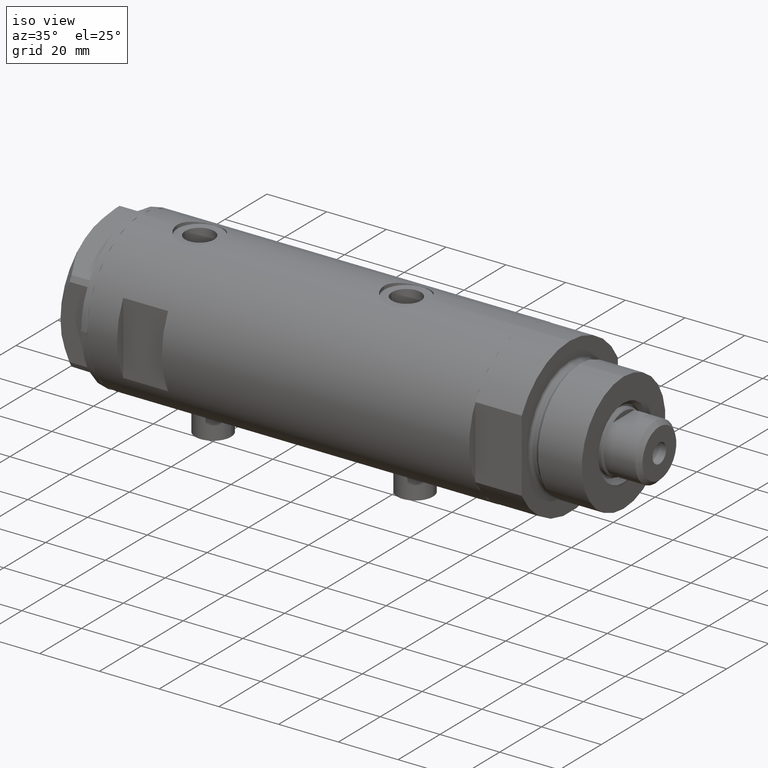
[diagram: clean part render]
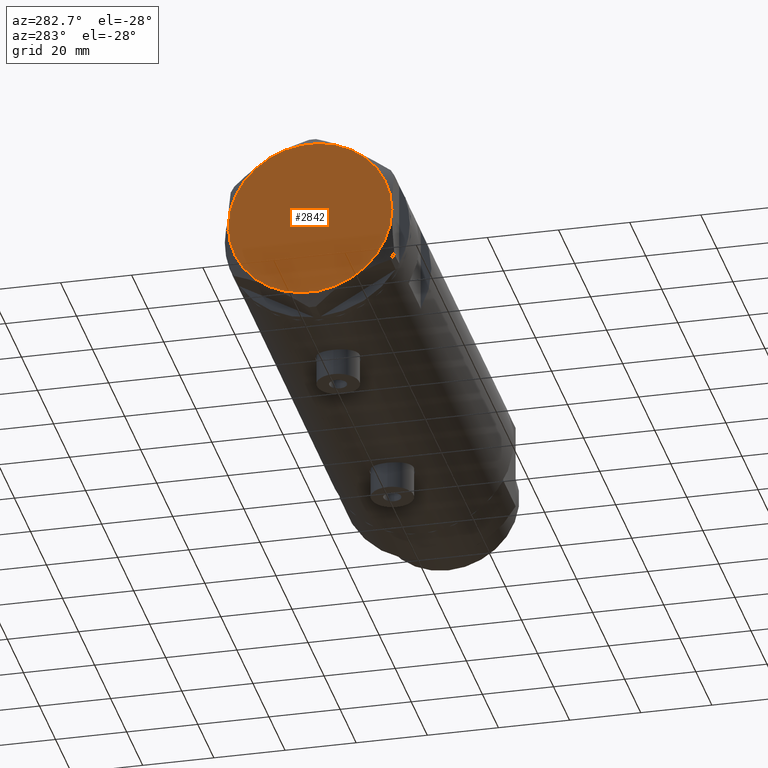
[diagram: tour spotlight — one face highlighted and labeled with its STEP entity id]
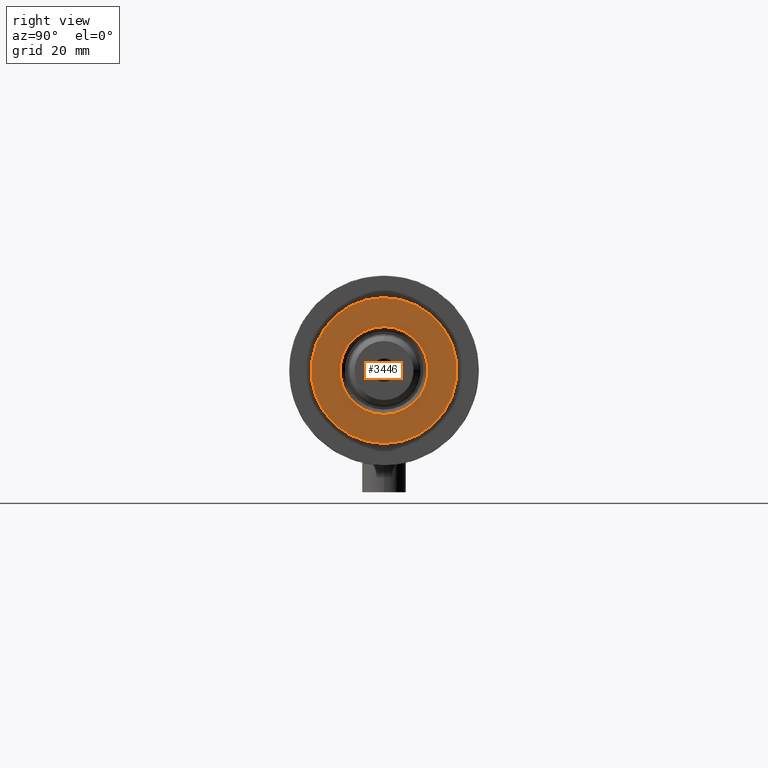
[diagram: tour spotlight — one face highlighted and labeled with its STEP entity id]
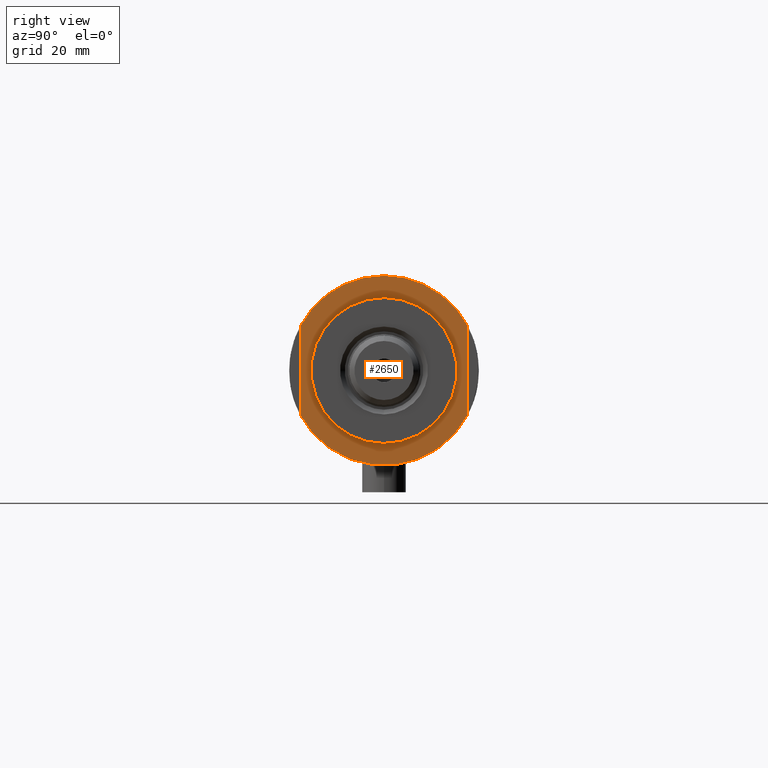
[diagram: tour spotlight — one face highlighted and labeled with its STEP entity id]
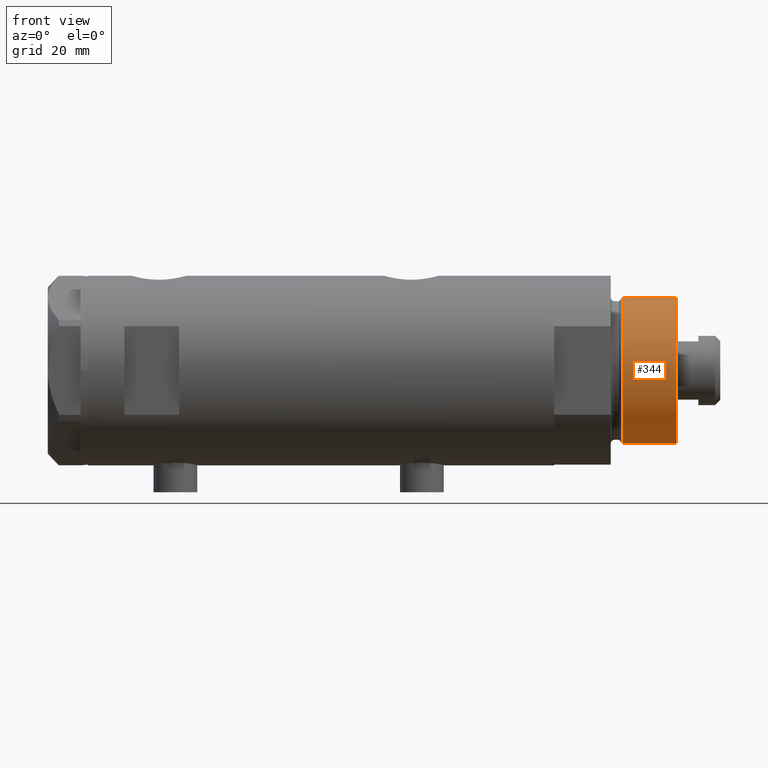
[diagram: tour spotlight — one face highlighted and labeled with its STEP entity id]
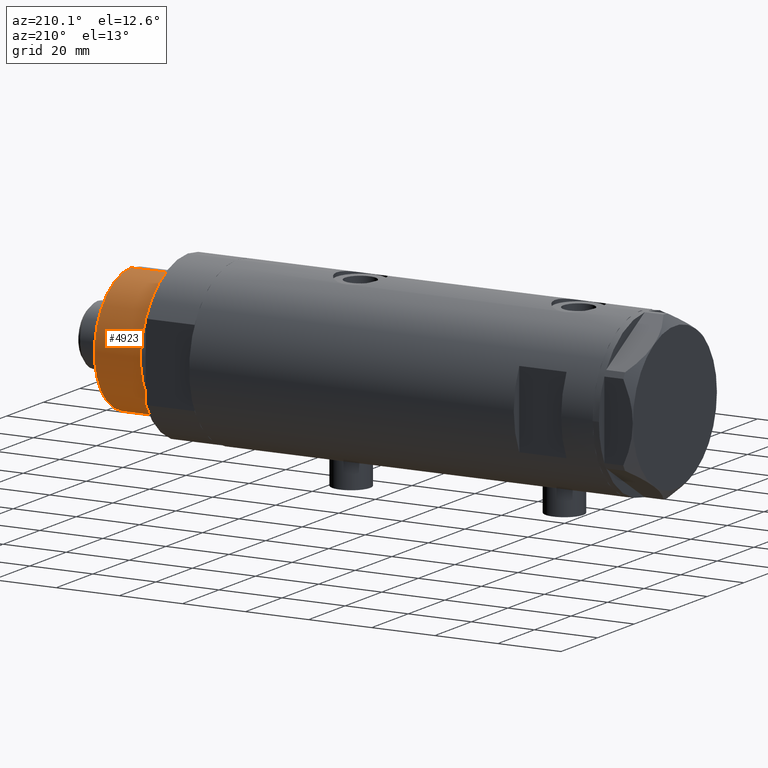
[diagram: tour spotlight — one face highlighted and labeled with its STEP entity id]
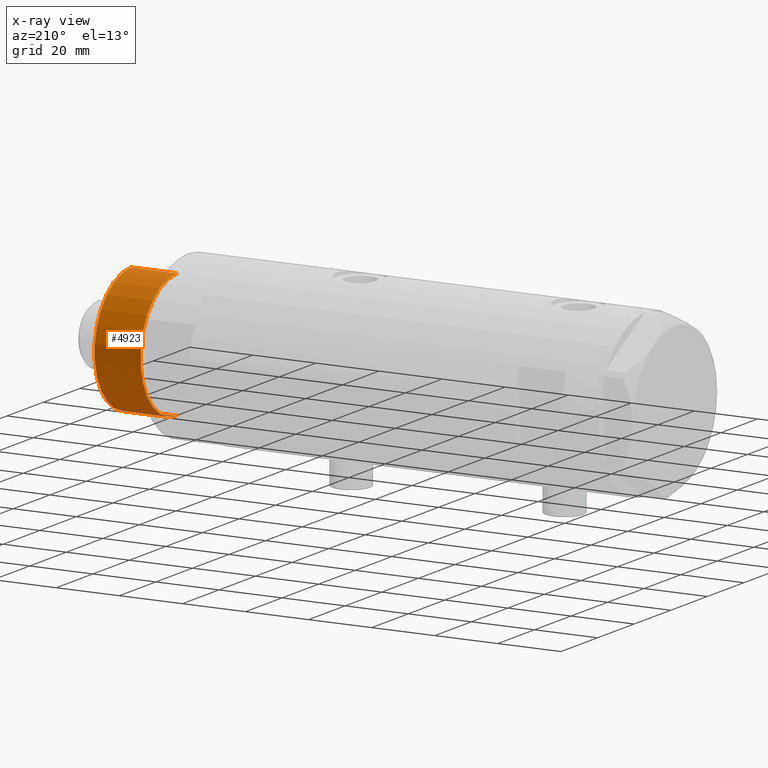
[diagram: x-ray of the same camera — body ghosted, this tour face saturated]
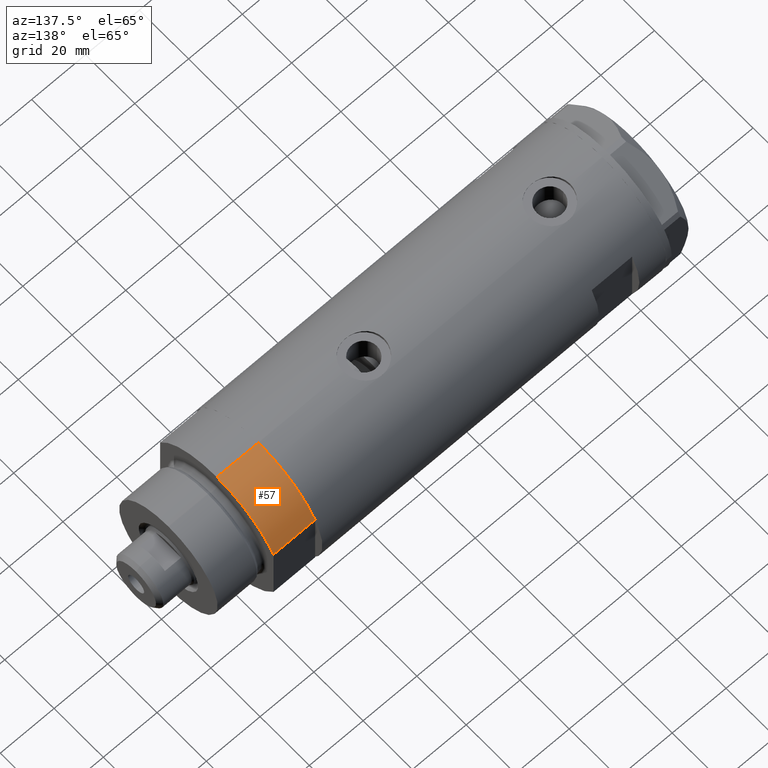
[diagram: tour spotlight — one face highlighted and labeled with its STEP entity id]
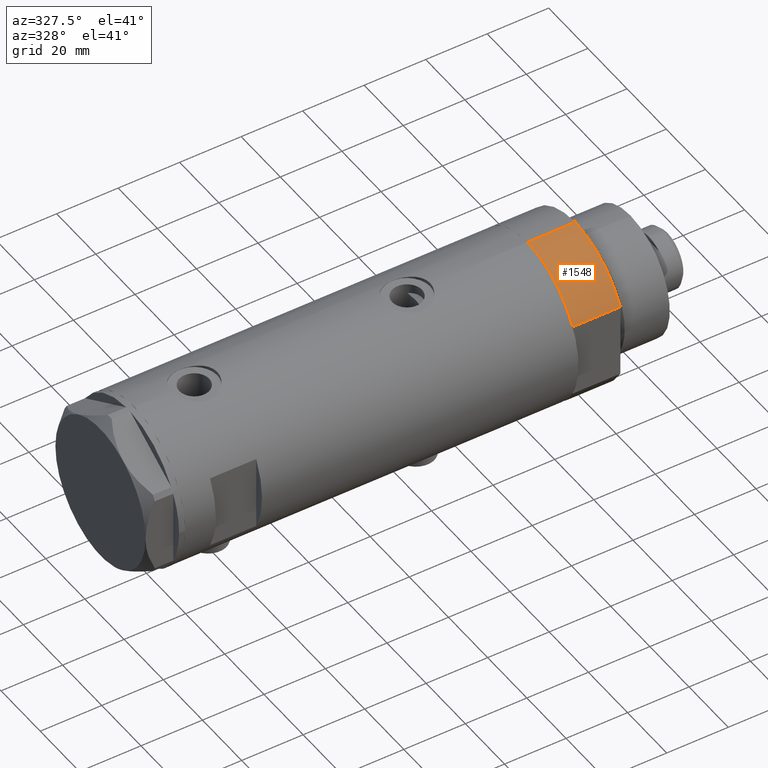
[diagram: tour spotlight — one face highlighted and labeled with its STEP entity id]
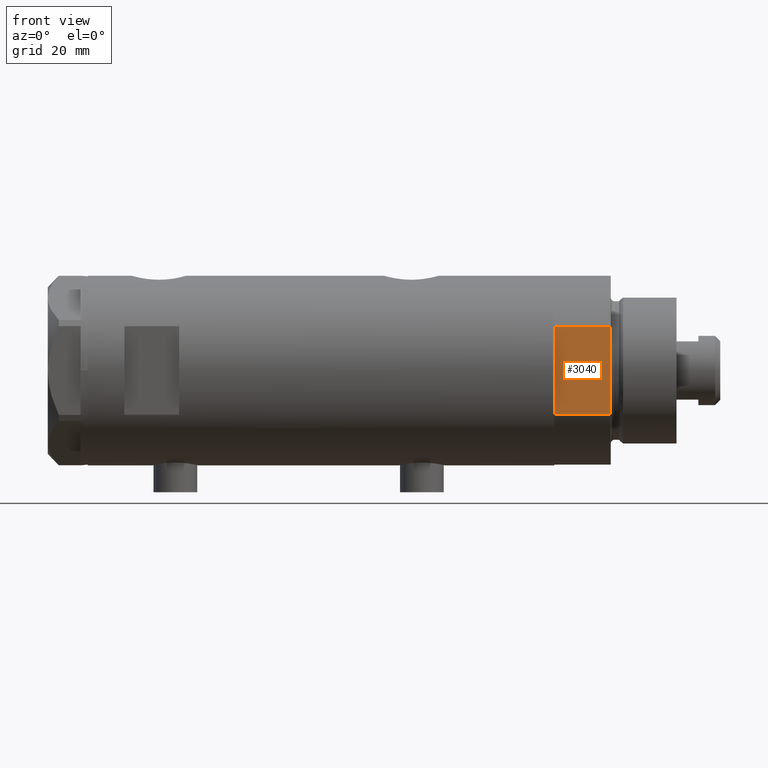
[diagram: tour spotlight — one face highlighted and labeled with its STEP entity id]
A machine part: a face-by-face anatomy tour. The part has 140 B-rep faces; the first image is the clean iso view, then the 8 largest visible faces are spotlighted one at a time (largest first), each with its STEP entity span.

Face 1 — auxiliary view, entity #2842. In plain terms, the highlighted planar face has unit normal (-1, -0, 0).
Definition (entity closure, byte-faithful):
#30 = CIRCLE ( 'NONE', #1474, 23.00000000000004619 ) ;
#229 = CARTESIAN_POINT ( 'NONE',  ( -11.49999999999990585, -19.91858428704219364, 9.000000000000000000 ) ) ;
#280 = DIRECTION ( 'NONE',  ( 0.000000000000000000, 0.000000000000000000, 1.000000000000000000 ) ) ;
#434 = DIRECTION ( 'NONE',  ( 1.000000000000000000, 0.000000000000000000, 0.000000000000000000 ) ) ;
#466 = EDGE_CURVE ( 'NONE', #3816, #5144, #509, .T. ) ;
#499 = ORIENTED_EDGE ( 'NONE', *, *, #4385, .T. ) ;
#509 = CIRCLE ( 'NONE', #3430, 23.00000000000004619 ) ;
#587 = CARTESIAN_POINT ( 'NONE',  ( 11.50000000000018296, -19.91858428704203732, 9.000000000000000000 ) ) ;
#628 = AXIS2_PLACEMENT_3D ( 'NONE', #3451, #2910, #1475 ) ;
#1187 = DIRECTION ( 'NONE',  ( 0.000000000000000000, 0.000000000000000000, 1.000000000000000000 ) ) ;
#1328 = DIRECTION ( 'NONE',  ( 1.000000000000000000, 0.000000000000000000, 0.000000000000000000 ) ) ;
#1376 = CIRCLE ( 'NONE', #4282, 23.00000000000004619 ) ;
#1474 = AXIS2_PLACEMENT_3D ( 'NONE', #4336, #1578, #434 ) ;
#1475 = DIRECTION ( 'NONE',  ( 1.000000000000000000, 0.000000000000000000, 0.000000000000000000 ) ) ;
#1545 = CIRCLE ( 'NONE', #628, 23.00000000000004619 ) ;
#1578 = DIRECTION ( 'NONE',  ( 0.000000000000000000, 0.000000000000000000, 1.000000000000000000 ) ) ;
#1593 = ORIENTED_EDGE ( 'NONE', *, *, #4887, .T. ) ;
#1724 = DIRECTION ( 'NONE',  ( 1.000000000000000000, 0.000000000000000000, 0.000000000000000000 ) ) ;
#1775 = CARTESIAN_POINT ( 'NONE',  ( 0.000000000000000000, 0.000000000000000000, 9.000000000000000000 ) ) ;
#1903 = ORIENTED_EDGE ( 'NONE', *, *, #3066, .T. ) ;
#2179 = FACE_OUTER_BOUND ( 'NONE', #3020, .T. ) ;
#2186 = DIRECTION ( 'NONE',  ( 1.000000000000000000, 0.000000000000000000, 0.000000000000000000 ) ) ;
#2318 = CARTESIAN_POINT ( 'NONE',  ( 0.000000000000000000, 0.000000000000000000, 9.000000000000000000 ) ) ;
#2492 = DIRECTION ( 'NONE',  ( 0.000000000000000000, 0.000000000000000000, 1.000000000000000000 ) ) ;
#2568 = CARTESIAN_POINT ( 'NONE',  ( 0.000000000000000000, 0.000000000000000000, 9.000000000000000000 ) ) ;
#2590 = CARTESIAN_POINT ( 'NONE',  ( -11.50000000000004441, 19.91858428704211548, 9.000000000000000000 ) ) ;
#2613 = AXIS2_PLACEMENT_3D ( 'NONE', #4791, #1187, #5166 ) ;
#2842 = ADVANCED_FACE ( 'NONE', ( #2179 ), #3764, .T. ) ;
#2910 = DIRECTION ( 'NONE',  ( 0.000000000000000000, 0.000000000000000000, 1.000000000000000000 ) ) ;
#3020 = EDGE_LOOP ( 'NONE', ( #3363, #4602, #4624, #1903, #499, #1593 ) ) ;
#3053 = CARTESIAN_POINT ( 'NONE',  ( -23.00000000000004619, -8.112498833180673323E-14, 9.000000000000000000 ) ) ;
#3055 = EDGE_CURVE ( 'NONE', #4572, #3816, #1376, .T. ) ;
#3066 = EDGE_CURVE ( 'NONE', #3070, #4918, #3111, .T. ) ;
#3070 = VERTEX_POINT ( 'NONE', #2590 ) ;
#3111 = CIRCLE ( 'NONE', #5129, 23.00000000000004619 ) ;
#3156 = CARTESIAN_POINT ( 'NONE',  ( 11.49999999999990408, 19.91858428704219364, 9.000000000000000000 ) ) ;
#3240 = VERTEX_POINT ( 'NONE', #229 ) ;
#3347 = CARTESIAN_POINT ( 'NONE',  ( 22.99999999999995026, 2.373657066004705010E-13, 9.000000000000000000 ) ) ;
#3363 = ORIENTED_EDGE ( 'NONE', *, *, #3055, .T. ) ;
#3376 = DIRECTION ( 'NONE',  ( 0.000000000000000000, 0.000000000000000000, 1.000000000000000000 ) ) ;
#3430 = AXIS2_PLACEMENT_3D ( 'NONE', #4288, #280, #2186 ) ;
#3451 = CARTESIAN_POINT ( 'NONE',  ( 0.000000000000000000, 0.000000000000000000, 9.000000000000000000 ) ) ;
#3764 = PLANE ( 'NONE',  #4786 ) ;
#3816 = VERTEX_POINT ( 'NONE', #3347 ) ;
#3886 = CIRCLE ( 'NONE', #2613, 23.00000000000004619 ) ;
#4119 = DIRECTION ( 'NONE',  ( 0.000000000000000000, 0.000000000000000000, 1.000000000000000000 ) ) ;
#4282 = AXIS2_PLACEMENT_3D ( 'NONE', #2568, #4119, #1724 ) ;
#4288 = CARTESIAN_POINT ( 'NONE',  ( 0.000000000000000000, 0.000000000000000000, 9.000000000000000000 ) ) ;
#4336 = CARTESIAN_POINT ( 'NONE',  ( 0.000000000000000000, 0.000000000000000000, 9.000000000000000000 ) ) ;
#4385 = EDGE_CURVE ( 'NONE', #4918, #3240, #30, .T. ) ;
#4572 = VERTEX_POINT ( 'NONE', #587 ) ;
#4580 = DIRECTION ( 'NONE',  ( 1.000000000000000000, 0.000000000000000000, -0.000000000000000000 ) ) ;
#4602 = ORIENTED_EDGE ( 'NONE', *, *, #466, .T. ) ;
#4624 = ORIENTED_EDGE ( 'NONE', *, *, #4796, .T. ) ;
#4786 = AXIS2_PLACEMENT_3D ( 'NONE', #2318, #3376, #4580 ) ;
#4791 = CARTESIAN_POINT ( 'NONE',  ( 0.000000000000000000, 0.000000000000000000, 9.000000000000000000 ) ) ;
#4796 = EDGE_CURVE ( 'NONE', #5144, #3070, #3886, .T. ) ;
#4887 = EDGE_CURVE ( 'NONE', #3240, #4572, #1545, .T. ) ;
#4918 = VERTEX_POINT ( 'NONE', #3053 ) ;
#5129 = AXIS2_PLACEMENT_3D ( 'NONE', #1775, #2492, #1328 ) ;
#5144 = VERTEX_POINT ( 'NONE', #3156 ) ;
#5166 = DIRECTION ( 'NONE',  ( 1.000000000000000000, 0.000000000000000000, 0.000000000000000000 ) ) ;

Face 2 — right view, entity #3446. In plain terms, the highlighted planar face has unit normal (1, 0, -0).
Definition (entity closure, byte-faithful):
#115 = AXIS2_PLACEMENT_3D ( 'NONE', #3724, #2907, #948 ) ;
#752 = DIRECTION ( 'NONE',  ( 0.000000000000000000, 0.000000000000000000, 1.000000000000000000 ) ) ;
#947 = AXIS2_PLACEMENT_3D ( 'NONE', #1769, #4027, #4056 ) ;
#948 = DIRECTION ( 'NONE',  ( 1.000000000000000000, 0.000000000000000000, -0.000000000000000000 ) ) ;
#1264 = CARTESIAN_POINT ( 'NONE',  ( -12.05000000000000426, 1.475699392972560823E-15, 33.50000000000000000 ) ) ;
#1299 = EDGE_LOOP ( 'NONE', ( #3348, #4116 ) ) ;
#1320 = DIRECTION ( 'NONE',  ( -0.000000000000000000, -0.000000000000000000, -1.000000000000000000 ) ) ;
#1387 = CIRCLE ( 'NONE', #4711, 19.99999999999999645 ) ;
#1444 = CARTESIAN_POINT ( 'NONE',  ( 12.05000000000000426, 0.000000000000000000, 33.50000000000000000 ) ) ;
#1769 = CARTESIAN_POINT ( 'NONE',  ( 0.000000000000000000, 0.000000000000000000, 33.50000000000000000 ) ) ;
#1983 = EDGE_CURVE ( 'NONE', #3813, #5063, #2361, .T. ) ;
#1995 = CARTESIAN_POINT ( 'NONE',  ( 0.000000000000000000, 0.000000000000000000, 33.50000000000000000 ) ) ;
#2077 = DIRECTION ( 'NONE',  ( 1.000000000000000000, 0.000000000000000000, 0.000000000000000000 ) ) ;
#2180 = CARTESIAN_POINT ( 'NONE',  ( -19.99999999999999645, 0.000000000000000000, 33.50000000000000000 ) ) ;
#2345 = VERTEX_POINT ( 'NONE', #1264 ) ;
#2361 = CIRCLE ( 'NONE', #3025, 19.99999999999999645 ) ;
#2405 = EDGE_CURVE ( 'NONE', #2345, #4947, #4622, .T. ) ;
#2464 = EDGE_CURVE ( 'NONE', #4947, #2345, #5125, .T. ) ;
#2510 = FACE_OUTER_BOUND ( 'NONE', #4354, .T. ) ;
#2907 = DIRECTION ( 'NONE',  ( 0.000000000000000000, 0.000000000000000000, 1.000000000000000000 ) ) ;
#3025 = AXIS2_PLACEMENT_3D ( 'NONE', #3277, #4879, #4514 ) ;
#3267 = FACE_BOUND ( 'NONE', #1299, .T. ) ;
#3277 = CARTESIAN_POINT ( 'NONE',  ( 0.000000000000000000, 0.000000000000000000, 33.50000000000000000 ) ) ;
#3348 = ORIENTED_EDGE ( 'NONE', *, *, #2464, .T. ) ;
#3446 = ADVANCED_FACE ( 'NONE', ( #3267, #2510 ), #4109, .T. ) ;
#3642 = CARTESIAN_POINT ( 'NONE',  ( 0.000000000000000000, 0.000000000000000000, 33.50000000000000000 ) ) ;
#3686 = EDGE_CURVE ( 'NONE', #5063, #3813, #1387, .T. ) ;
#3724 = CARTESIAN_POINT ( 'NONE',  ( 0.000000000000000000, 0.000000000000000000, 33.50000000000000000 ) ) ;
#3813 = VERTEX_POINT ( 'NONE', #2180 ) ;
#4027 = DIRECTION ( 'NONE',  ( -0.000000000000000000, -0.000000000000000000, -1.000000000000000000 ) ) ;
#4056 = DIRECTION ( 'NONE',  ( 1.000000000000000000, 0.000000000000000000, 0.000000000000000000 ) ) ;
#4109 = PLANE ( 'NONE',  #115 ) ;
#4116 = ORIENTED_EDGE ( 'NONE', *, *, #2405, .T. ) ;
#4229 = ORIENTED_EDGE ( 'NONE', *, *, #1983, .T. ) ;
#4354 = EDGE_LOOP ( 'NONE', ( #4229, #4402 ) ) ;
#4402 = ORIENTED_EDGE ( 'NONE', *, *, #3686, .T. ) ;
#4514 = DIRECTION ( 'NONE',  ( 1.000000000000000000, 0.000000000000000000, 0.000000000000000000 ) ) ;
#4622 = CIRCLE ( 'NONE', #947, 12.05000000000000426 ) ;
#4711 = AXIS2_PLACEMENT_3D ( 'NONE', #1995, #752, #4735 ) ;
#4735 = DIRECTION ( 'NONE',  ( 1.000000000000000000, 0.000000000000000000, 0.000000000000000000 ) ) ;
#4754 = CARTESIAN_POINT ( 'NONE',  ( 19.99999999999999645, 2.449293598294706119E-15, 33.50000000000000000 ) ) ;
#4781 = AXIS2_PLACEMENT_3D ( 'NONE', #3642, #1320, #2077 ) ;
#4879 = DIRECTION ( 'NONE',  ( 0.000000000000000000, 0.000000000000000000, 1.000000000000000000 ) ) ;
#4947 = VERTEX_POINT ( 'NONE', #1444 ) ;
#5063 = VERTEX_POINT ( 'NONE', #4754 ) ;
#5125 = CIRCLE ( 'NONE', #4781, 12.05000000000000426 ) ;

Face 3 — right view, entity #2650. In plain terms, the highlighted planar face has unit normal (1, 0, -0).
Definition (entity closure, byte-faithful):
#48 = ORIENTED_EDGE ( 'NONE', *, *, #2075, .F. ) ;
#77 = CARTESIAN_POINT ( 'NONE',  ( 0.000000000000000000, 0.000000000000000000, 15.50000000000000000 ) ) ;
#96 = EDGE_CURVE ( 'NONE', #529, #340, #1685, .T. ) ;
#215 = DIRECTION ( 'NONE',  ( 1.000000000000000000, 0.000000000000000000, 0.000000000000000000 ) ) ;
#340 = VERTEX_POINT ( 'NONE', #1773 ) ;
#370 = VERTEX_POINT ( 'NONE', #4539 ) ;
#379 = CARTESIAN_POINT ( 'NONE',  ( 0.000000000000000000, 0.000000000000000000, 15.50000000000000000 ) ) ;
#409 = ORIENTED_EDGE ( 'NONE', *, *, #5120, .T. ) ;
#431 = CIRCLE ( 'NONE', #1615, 26.00000000000000355 ) ;
#478 = DIRECTION ( 'NONE',  ( 1.000000000000000000, 0.000000000000000000, 0.000000000000000000 ) ) ;
#529 = VERTEX_POINT ( 'NONE', #5025 ) ;
#638 = EDGE_CURVE ( 'NONE', #370, #340, #4472, .T. ) ;
#693 = CIRCLE ( 'NONE', #1870, 26.00000000000000355 ) ;
#856 = DIRECTION ( 'NONE',  ( -1.000000000000000000, -0.000000000000000000, -0.000000000000000000 ) ) ;
#1134 = CIRCLE ( 'NONE', #4219, 20.00000000000000000 ) ;
#1369 = PLANE ( 'NONE',  #2781 ) ;
#1407 = LINE ( 'NONE', #4292, #3445 ) ;
#1595 = VERTEX_POINT ( 'NONE', #4098 ) ;
#1615 = AXIS2_PLACEMENT_3D ( 'NONE', #2419, #2005, #5196 ) ;
#1668 = DIRECTION ( 'NONE',  ( 0.000000000000000000, 0.000000000000000000, 1.000000000000000000 ) ) ;
#1685 = CIRCLE ( 'NONE', #2351, 26.00000000000000355 ) ;
#1773 = CARTESIAN_POINT ( 'NONE',  ( -12.12435565298215323, -22.99999999999999645, 15.50000000000000000 ) ) ;
#1838 = EDGE_CURVE ( 'NONE', #370, #4001, #431, .T. ) ;
#1870 = AXIS2_PLACEMENT_3D ( 'NONE', #77, #1668, #478 ) ;
#2005 = DIRECTION ( 'NONE',  ( 0.000000000000000000, 0.000000000000000000, 1.000000000000000000 ) ) ;
#2043 = CIRCLE ( 'NONE', #4130, 20.00000000000000000 ) ;
#2075 = EDGE_CURVE ( 'NONE', #5071, #4001, #1407, .T. ) ;
#2100 = DIRECTION ( 'NONE',  ( 1.000000000000000000, 0.000000000000000000, -0.000000000000000000 ) ) ;
#2107 = EDGE_LOOP ( 'NONE', ( #3207, #409 ) ) ;
#2327 = DIRECTION ( 'NONE',  ( 1.000000000000000000, 0.000000000000000000, 0.000000000000000000 ) ) ;
#2351 = AXIS2_PLACEMENT_3D ( 'NONE', #3810, #2670, #215 ) ;
#2419 = CARTESIAN_POINT ( 'NONE',  ( 0.000000000000000000, 0.000000000000000000, 15.50000000000000000 ) ) ;
#2650 = ADVANCED_FACE ( 'NONE', ( #4921, #3291 ), #1369, .T. ) ;
#2670 = DIRECTION ( 'NONE',  ( 0.000000000000000000, 0.000000000000000000, 1.000000000000000000 ) ) ;
#2681 = CARTESIAN_POINT ( 'NONE',  ( 12.12435565298214790, 23.00000000000000355, 15.50000000000000000 ) ) ;
#2758 = VECTOR ( 'NONE', #856, 1000.000000000000000 ) ;
#2781 = AXIS2_PLACEMENT_3D ( 'NONE', #4502, #2875, #2100 ) ;
#2864 = EDGE_CURVE ( 'NONE', #5071, #529, #693, .T. ) ;
#2875 = DIRECTION ( 'NONE',  ( 0.000000000000000000, 0.000000000000000000, 1.000000000000000000 ) ) ;
#3009 = DIRECTION ( 'NONE',  ( -0.000000000000000000, -0.000000000000000000, -1.000000000000000000 ) ) ;
#3207 = ORIENTED_EDGE ( 'NONE', *, *, #3233, .T. ) ;
#3233 = EDGE_CURVE ( 'NONE', #1595, #4086, #2043, .T. ) ;
#3291 = FACE_OUTER_BOUND ( 'NONE', #5095, .T. ) ;
#3445 = VECTOR ( 'NONE', #4660, 1000.000000000000000 ) ;
#3485 = DIRECTION ( 'NONE',  ( 1.000000000000000000, 0.000000000000000000, 0.000000000000000000 ) ) ;
#3603 = CARTESIAN_POINT ( 'NONE',  ( -12.12435565298214613, 23.00000000000000355, 15.50000000000000000 ) ) ;
#3810 = CARTESIAN_POINT ( 'NONE',  ( 0.000000000000000000, 0.000000000000000000, 15.50000000000000000 ) ) ;
#3924 = CARTESIAN_POINT ( 'NONE',  ( 0.000000000000000000, 0.000000000000000000, 15.50000000000000000 ) ) ;
#3966 = ORIENTED_EDGE ( 'NONE', *, *, #638, .F. ) ;
#3986 = ORIENTED_EDGE ( 'NONE', *, *, #2864, .T. ) ;
#4001 = VERTEX_POINT ( 'NONE', #2681 ) ;
#4047 = CARTESIAN_POINT ( 'NONE',  ( -12.12435565298215145, -22.99999999999999645, 15.50000000000000000 ) ) ;
#4086 = VERTEX_POINT ( 'NONE', #4359 ) ;
#4098 = CARTESIAN_POINT ( 'NONE',  ( 20.00000000000000000, 0.000000000000000000, 15.50000000000000000 ) ) ;
#4130 = AXIS2_PLACEMENT_3D ( 'NONE', #3924, #3009, #3485 ) ;
#4219 = AXIS2_PLACEMENT_3D ( 'NONE', #379, #4335, #2327 ) ;
#4292 = CARTESIAN_POINT ( 'NONE',  ( -12.12435565298215145, 23.00000000000000355, 15.50000000000000000 ) ) ;
#4335 = DIRECTION ( 'NONE',  ( -0.000000000000000000, -0.000000000000000000, -1.000000000000000000 ) ) ;
#4359 = CARTESIAN_POINT ( 'NONE',  ( -20.00000000000000000, 2.449293598294706513E-15, 15.50000000000000000 ) ) ;
#4438 = ORIENTED_EDGE ( 'NONE', *, *, #1838, .T. ) ;
#4472 = LINE ( 'NONE', #4047, #2758 ) ;
#4502 = CARTESIAN_POINT ( 'NONE',  ( 0.000000000000000000, 0.000000000000000000, 15.50000000000000000 ) ) ;
#4539 = CARTESIAN_POINT ( 'NONE',  ( 12.12435565298215323, -22.99999999999999645, 15.50000000000000000 ) ) ;
#4660 = DIRECTION ( 'NONE',  ( 1.000000000000000000, 0.000000000000000000, 0.000000000000000000 ) ) ;
#4814 = ORIENTED_EDGE ( 'NONE', *, *, #96, .T. ) ;
#4921 = FACE_BOUND ( 'NONE', #2107, .T. ) ;
#5025 = CARTESIAN_POINT ( 'NONE',  ( -26.00000000000000355, 0.000000000000000000, 15.50000000000000000 ) ) ;
#5071 = VERTEX_POINT ( 'NONE', #3603 ) ;
#5095 = EDGE_LOOP ( 'NONE', ( #3966, #4438, #48, #3986, #4814 ) ) ;
#5120 = EDGE_CURVE ( 'NONE', #4086, #1595, #1134, .T. ) ;
#5196 = DIRECTION ( 'NONE',  ( 1.000000000000000000, 0.000000000000000000, 0.000000000000000000 ) ) ;

Face 4 — front view, entity #344. In plain terms, the highlighted cylindrical surface (partial cylindrical patch) has radius 20 mm, axis along (-1, -0, 0).
Definition (entity closure, byte-faithful):
#76 = CYLINDRICAL_SURFACE ( 'NONE', #81, 19.99999999999999645 ) ;
#81 = AXIS2_PLACEMENT_3D ( 'NONE', #4488, #3273, #137 ) ;
#137 = DIRECTION ( 'NONE',  ( -1.000000000000000000, 0.000000000000000000, 0.000000000000000000 ) ) ;
#268 = ORIENTED_EDGE ( 'NONE', *, *, #1983, .F. ) ;
#324 = CARTESIAN_POINT ( 'NONE',  ( 0.000000000000000000, 0.000000000000000000, 18.87384048104053846 ) ) ;
#341 = EDGE_CURVE ( 'NONE', #5063, #2704, #902, .T. ) ;
#344 = ADVANCED_FACE ( 'NONE', ( #4117 ), #76, .T. ) ;
#689 = CARTESIAN_POINT ( 'NONE',  ( 19.99999999999999645, 2.449293598294706119E-15, 18.87384048104053846 ) ) ;
#876 = CARTESIAN_POINT ( 'NONE',  ( 19.99999999999999645, 2.449293598294706119E-15, 33.50000000000000000 ) ) ;
#902 = LINE ( 'NONE', #876, #2103 ) ;
#1346 = LINE ( 'NONE', #2935, #3873 ) ;
#1390 = ORIENTED_EDGE ( 'NONE', *, *, #341, .F. ) ;
#1553 = CIRCLE ( 'NONE', #4046, 19.99999999999999645 ) ;
#1983 = EDGE_CURVE ( 'NONE', #3813, #5063, #2361, .T. ) ;
#2103 = VECTOR ( 'NONE', #4511, 1000.000000000000000 ) ;
#2180 = CARTESIAN_POINT ( 'NONE',  ( -19.99999999999999645, 0.000000000000000000, 33.50000000000000000 ) ) ;
#2361 = CIRCLE ( 'NONE', #3025, 19.99999999999999645 ) ;
#2373 = ORIENTED_EDGE ( 'NONE', *, *, #3670, .T. ) ;
#2447 = VERTEX_POINT ( 'NONE', #3242 ) ;
#2704 = VERTEX_POINT ( 'NONE', #689 ) ;
#2899 = EDGE_LOOP ( 'NONE', ( #1390, #268, #3006, #2373 ) ) ;
#2935 = CARTESIAN_POINT ( 'NONE',  ( -19.99999999999999645, 0.000000000000000000, 33.50000000000000000 ) ) ;
#3006 = ORIENTED_EDGE ( 'NONE', *, *, #3552, .T. ) ;
#3025 = AXIS2_PLACEMENT_3D ( 'NONE', #3277, #4879, #4514 ) ;
#3242 = CARTESIAN_POINT ( 'NONE',  ( -19.99999999999999645, 0.000000000000000000, 18.87384048104053846 ) ) ;
#3273 = DIRECTION ( 'NONE',  ( -0.000000000000000000, -0.000000000000000000, -1.000000000000000000 ) ) ;
#3277 = CARTESIAN_POINT ( 'NONE',  ( 0.000000000000000000, 0.000000000000000000, 33.50000000000000000 ) ) ;
#3552 = EDGE_CURVE ( 'NONE', #3813, #2447, #1346, .T. ) ;
#3579 = DIRECTION ( 'NONE',  ( -0.000000000000000000, -0.000000000000000000, 1.000000000000000000 ) ) ;
#3638 = DIRECTION ( 'NONE',  ( 1.000000000000000000, 0.000000000000000000, 0.000000000000000000 ) ) ;
#3670 = EDGE_CURVE ( 'NONE', #2447, #2704, #1553, .T. ) ;
#3813 = VERTEX_POINT ( 'NONE', #2180 ) ;
#3873 = VECTOR ( 'NONE', #4141, 1000.000000000000000 ) ;
#4046 = AXIS2_PLACEMENT_3D ( 'NONE', #324, #3579, #3638 ) ;
#4117 = FACE_OUTER_BOUND ( 'NONE', #2899, .T. ) ;
#4141 = DIRECTION ( 'NONE',  ( -0.000000000000000000, -0.000000000000000000, -1.000000000000000000 ) ) ;
#4488 = CARTESIAN_POINT ( 'NONE',  ( 0.000000000000000000, 0.000000000000000000, 33.50000000000000000 ) ) ;
#4511 = DIRECTION ( 'NONE',  ( -0.000000000000000000, -0.000000000000000000, -1.000000000000000000 ) ) ;
#4514 = DIRECTION ( 'NONE',  ( 1.000000000000000000, 0.000000000000000000, 0.000000000000000000 ) ) ;
#4754 = CARTESIAN_POINT ( 'NONE',  ( 19.99999999999999645, 2.449293598294706119E-15, 33.50000000000000000 ) ) ;
#4879 = DIRECTION ( 'NONE',  ( 0.000000000000000000, 0.000000000000000000, 1.000000000000000000 ) ) ;
#5063 = VERTEX_POINT ( 'NONE', #4754 ) ;

Face 5 — auxiliary view, entity #4923. An x-ray twin of the same camera follows (body ghosted, this face saturated) — the face is partly hidden behind the body. In plain terms, the highlighted cylindrical surface (partial cylindrical patch) has radius 20 mm, axis along (-1, -0, 0).
Definition (entity closure, byte-faithful):
#246 = ORIENTED_EDGE ( 'NONE', *, *, #894, .T. ) ;
#273 = CARTESIAN_POINT ( 'NONE',  ( 0.000000000000000000, 0.000000000000000000, 33.50000000000000000 ) ) ;
#341 = EDGE_CURVE ( 'NONE', #5063, #2704, #902, .T. ) ;
#569 = DIRECTION ( 'NONE',  ( -0.000000000000000000, -0.000000000000000000, 1.000000000000000000 ) ) ;
#617 = CARTESIAN_POINT ( 'NONE',  ( 0.000000000000000000, 0.000000000000000000, 18.87384048104053846 ) ) ;
#622 = ORIENTED_EDGE ( 'NONE', *, *, #3552, .F. ) ;
#689 = CARTESIAN_POINT ( 'NONE',  ( 19.99999999999999645, 2.449293598294706119E-15, 18.87384048104053846 ) ) ;
#752 = DIRECTION ( 'NONE',  ( 0.000000000000000000, 0.000000000000000000, 1.000000000000000000 ) ) ;
#876 = CARTESIAN_POINT ( 'NONE',  ( 19.99999999999999645, 2.449293598294706119E-15, 33.50000000000000000 ) ) ;
#894 = EDGE_CURVE ( 'NONE', #2704, #2447, #2598, .T. ) ;
#902 = LINE ( 'NONE', #876, #2103 ) ;
#1069 = CYLINDRICAL_SURFACE ( 'NONE', #4896, 19.99999999999999645 ) ;
#1346 = LINE ( 'NONE', #2935, #3873 ) ;
#1387 = CIRCLE ( 'NONE', #4711, 19.99999999999999645 ) ;
#1995 = CARTESIAN_POINT ( 'NONE',  ( 0.000000000000000000, 0.000000000000000000, 33.50000000000000000 ) ) ;
#2103 = VECTOR ( 'NONE', #4511, 1000.000000000000000 ) ;
#2180 = CARTESIAN_POINT ( 'NONE',  ( -19.99999999999999645, 0.000000000000000000, 33.50000000000000000 ) ) ;
#2447 = VERTEX_POINT ( 'NONE', #3242 ) ;
#2598 = CIRCLE ( 'NONE', #4529, 19.99999999999999645 ) ;
#2623 = ORIENTED_EDGE ( 'NONE', *, *, #341, .T. ) ;
#2704 = VERTEX_POINT ( 'NONE', #689 ) ;
#2935 = CARTESIAN_POINT ( 'NONE',  ( -19.99999999999999645, 0.000000000000000000, 33.50000000000000000 ) ) ;
#3044 = EDGE_LOOP ( 'NONE', ( #3908, #2623, #246, #622 ) ) ;
#3242 = CARTESIAN_POINT ( 'NONE',  ( -19.99999999999999645, 0.000000000000000000, 18.87384048104053846 ) ) ;
#3328 = FACE_OUTER_BOUND ( 'NONE', #3044, .T. ) ;
#3478 = DIRECTION ( 'NONE',  ( -1.000000000000000000, 0.000000000000000000, 0.000000000000000000 ) ) ;
#3552 = EDGE_CURVE ( 'NONE', #3813, #2447, #1346, .T. ) ;
#3686 = EDGE_CURVE ( 'NONE', #5063, #3813, #1387, .T. ) ;
#3739 = DIRECTION ( 'NONE',  ( 1.000000000000000000, 0.000000000000000000, 0.000000000000000000 ) ) ;
#3813 = VERTEX_POINT ( 'NONE', #2180 ) ;
#3873 = VECTOR ( 'NONE', #4141, 1000.000000000000000 ) ;
#3908 = ORIENTED_EDGE ( 'NONE', *, *, #3686, .F. ) ;
#4141 = DIRECTION ( 'NONE',  ( -0.000000000000000000, -0.000000000000000000, -1.000000000000000000 ) ) ;
#4281 = DIRECTION ( 'NONE',  ( -0.000000000000000000, -0.000000000000000000, -1.000000000000000000 ) ) ;
#4511 = DIRECTION ( 'NONE',  ( -0.000000000000000000, -0.000000000000000000, -1.000000000000000000 ) ) ;
#4529 = AXIS2_PLACEMENT_3D ( 'NONE', #617, #569, #3739 ) ;
#4711 = AXIS2_PLACEMENT_3D ( 'NONE', #1995, #752, #4735 ) ;
#4735 = DIRECTION ( 'NONE',  ( 1.000000000000000000, 0.000000000000000000, 0.000000000000000000 ) ) ;
#4754 = CARTESIAN_POINT ( 'NONE',  ( 19.99999999999999645, 2.449293598294706119E-15, 33.50000000000000000 ) ) ;
#4896 = AXIS2_PLACEMENT_3D ( 'NONE', #273, #4281, #3478 ) ;
#4923 = ADVANCED_FACE ( 'NONE', ( #3328 ), #1069, .T. ) ;
#5063 = VERTEX_POINT ( 'NONE', #4754 ) ;

Face 6 — auxiliary view, entity #57. In plain terms, the highlighted cylindrical surface (partial cylindrical patch) has radius 26 mm, axis along (-1, -0, 0).
Definition (entity closure, byte-faithful):
#57 = ADVANCED_FACE ( 'NONE', ( #4298 ), #1926, .T. ) ;
#77 = CARTESIAN_POINT ( 'NONE',  ( 0.000000000000000000, 0.000000000000000000, 15.50000000000000000 ) ) ;
#260 = DIRECTION ( 'NONE',  ( -1.000000000000000000, 0.000000000000000000, 0.000000000000000000 ) ) ;
#478 = DIRECTION ( 'NONE',  ( 1.000000000000000000, 0.000000000000000000, 0.000000000000000000 ) ) ;
#529 = VERTEX_POINT ( 'NONE', #5025 ) ;
#550 = EDGE_CURVE ( 'NONE', #2649, #5071, #3482, .T. ) ;
#573 = DIRECTION ( 'NONE',  ( -0.000000000000000000, -0.000000000000000000, -1.000000000000000000 ) ) ;
#693 = CIRCLE ( 'NONE', #1870, 26.00000000000000355 ) ;
#1059 = CARTESIAN_POINT ( 'NONE',  ( 0.000000000000000000, 0.000000000000000000, 15.50000000000000000 ) ) ;
#1632 = VECTOR ( 'NONE', #573, 1000.000000000000000 ) ;
#1668 = DIRECTION ( 'NONE',  ( 0.000000000000000000, 0.000000000000000000, 1.000000000000000000 ) ) ;
#1764 = CARTESIAN_POINT ( 'NONE',  ( -12.12435565298215145, 23.00000000000000355, 0.000000000000000000 ) ) ;
#1870 = AXIS2_PLACEMENT_3D ( 'NONE', #77, #1668, #478 ) ;
#1885 = EDGE_LOOP ( 'NONE', ( #2022, #3383, #3679, #3593 ) ) ;
#1926 = CYLINDRICAL_SURFACE ( 'NONE', #4601, 26.00000000000000355 ) ;
#1935 = CARTESIAN_POINT ( 'NONE',  ( 0.000000000000000000, 0.000000000000000000, 0.000000000000000000 ) ) ;
#2022 = ORIENTED_EDGE ( 'NONE', *, *, #3815, .F. ) ;
#2612 = CARTESIAN_POINT ( 'NONE',  ( -12.12435565298215145, 23.00000000000000355, 0.000000000000000000 ) ) ;
#2649 = VERTEX_POINT ( 'NONE', #1764 ) ;
#2783 = CARTESIAN_POINT ( 'NONE',  ( -26.00000000000000355, 0.000000000000000000, 0.000000000000000000 ) ) ;
#2864 = EDGE_CURVE ( 'NONE', #5071, #529, #693, .T. ) ;
#3383 = ORIENTED_EDGE ( 'NONE', *, *, #2864, .F. ) ;
#3386 = DIRECTION ( 'NONE',  ( -0.000000000000000000, -0.000000000000000000, 1.000000000000000000 ) ) ;
#3468 = DIRECTION ( 'NONE',  ( -0.000000000000000000, -0.000000000000000000, -1.000000000000000000 ) ) ;
#3482 = LINE ( 'NONE', #2612, #4352 ) ;
#3593 = ORIENTED_EDGE ( 'NONE', *, *, #4161, .T. ) ;
#3603 = CARTESIAN_POINT ( 'NONE',  ( -12.12435565298214613, 23.00000000000000355, 15.50000000000000000 ) ) ;
#3679 = ORIENTED_EDGE ( 'NONE', *, *, #550, .F. ) ;
#3742 = LINE ( 'NONE', #4478, #1632 ) ;
#3799 = AXIS2_PLACEMENT_3D ( 'NONE', #1935, #4752, #4778 ) ;
#3815 = EDGE_CURVE ( 'NONE', #529, #4534, #3742, .T. ) ;
#4161 = EDGE_CURVE ( 'NONE', #2649, #4534, #5141, .T. ) ;
#4298 = FACE_OUTER_BOUND ( 'NONE', #1885, .T. ) ;
#4352 = VECTOR ( 'NONE', #3386, 1000.000000000000000 ) ;
#4478 = CARTESIAN_POINT ( 'NONE',  ( -26.00000000000000355, 0.000000000000000000, 15.50000000000000000 ) ) ;
#4534 = VERTEX_POINT ( 'NONE', #2783 ) ;
#4601 = AXIS2_PLACEMENT_3D ( 'NONE', #1059, #3468, #260 ) ;
#4752 = DIRECTION ( 'NONE',  ( 0.000000000000000000, 0.000000000000000000, 1.000000000000000000 ) ) ;
#4778 = DIRECTION ( 'NONE',  ( 1.000000000000000000, 0.000000000000000000, 0.000000000000000000 ) ) ;
#5025 = CARTESIAN_POINT ( 'NONE',  ( -26.00000000000000355, 0.000000000000000000, 15.50000000000000000 ) ) ;
#5071 = VERTEX_POINT ( 'NONE', #3603 ) ;
#5141 = CIRCLE ( 'NONE', #3799, 26.00000000000000355 ) ;

Face 7 — auxiliary view, entity #1548. In plain terms, the highlighted cylindrical surface (partial cylindrical patch) has radius 26 mm, axis along (-1, -0, 0).
Definition (entity closure, byte-faithful):
#96 = EDGE_CURVE ( 'NONE', #529, #340, #1685, .T. ) ;
#215 = DIRECTION ( 'NONE',  ( 1.000000000000000000, 0.000000000000000000, 0.000000000000000000 ) ) ;
#340 = VERTEX_POINT ( 'NONE', #1773 ) ;
#441 = DIRECTION ( 'NONE',  ( 1.000000000000000000, 0.000000000000000000, 0.000000000000000000 ) ) ;
#529 = VERTEX_POINT ( 'NONE', #5025 ) ;
#549 = VECTOR ( 'NONE', #2155, 1000.000000000000000 ) ;
#573 = DIRECTION ( 'NONE',  ( -0.000000000000000000, -0.000000000000000000, -1.000000000000000000 ) ) ;
#857 = LINE ( 'NONE', #2455, #549 ) ;
#969 = DIRECTION ( 'NONE',  ( -0.000000000000000000, -0.000000000000000000, -1.000000000000000000 ) ) ;
#1040 = ORIENTED_EDGE ( 'NONE', *, *, #3365, .T. ) ;
#1235 = CARTESIAN_POINT ( 'NONE',  ( -12.12435565298215501, -22.99999999999999645, 0.000000000000000000 ) ) ;
#1381 = AXIS2_PLACEMENT_3D ( 'NONE', #4788, #1582, #441 ) ;
#1548 = ADVANCED_FACE ( 'NONE', ( #3285 ), #4991, .T. ) ;
#1582 = DIRECTION ( 'NONE',  ( 0.000000000000000000, 0.000000000000000000, 1.000000000000000000 ) ) ;
#1632 = VECTOR ( 'NONE', #573, 1000.000000000000000 ) ;
#1685 = CIRCLE ( 'NONE', #2351, 26.00000000000000355 ) ;
#1773 = CARTESIAN_POINT ( 'NONE',  ( -12.12435565298215323, -22.99999999999999645, 15.50000000000000000 ) ) ;
#1955 = ORIENTED_EDGE ( 'NONE', *, *, #96, .F. ) ;
#2155 = DIRECTION ( 'NONE',  ( -0.000000000000000000, -0.000000000000000000, 1.000000000000000000 ) ) ;
#2181 = ORIENTED_EDGE ( 'NONE', *, *, #4284, .T. ) ;
#2351 = AXIS2_PLACEMENT_3D ( 'NONE', #3810, #2670, #215 ) ;
#2357 = AXIS2_PLACEMENT_3D ( 'NONE', #2897, #969, #4890 ) ;
#2455 = CARTESIAN_POINT ( 'NONE',  ( -12.12435565298215145, -22.99999999999999645, 0.000000000000000000 ) ) ;
#2670 = DIRECTION ( 'NONE',  ( 0.000000000000000000, 0.000000000000000000, 1.000000000000000000 ) ) ;
#2783 = CARTESIAN_POINT ( 'NONE',  ( -26.00000000000000355, 0.000000000000000000, 0.000000000000000000 ) ) ;
#2897 = CARTESIAN_POINT ( 'NONE',  ( 0.000000000000000000, 0.000000000000000000, 15.50000000000000000 ) ) ;
#3285 = FACE_OUTER_BOUND ( 'NONE', #3472, .T. ) ;
#3365 = EDGE_CURVE ( 'NONE', #4534, #4322, #3717, .T. ) ;
#3398 = ORIENTED_EDGE ( 'NONE', *, *, #3815, .T. ) ;
#3472 = EDGE_LOOP ( 'NONE', ( #1955, #3398, #1040, #2181 ) ) ;
#3717 = CIRCLE ( 'NONE', #1381, 26.00000000000000355 ) ;
#3742 = LINE ( 'NONE', #4478, #1632 ) ;
#3810 = CARTESIAN_POINT ( 'NONE',  ( 0.000000000000000000, 0.000000000000000000, 15.50000000000000000 ) ) ;
#3815 = EDGE_CURVE ( 'NONE', #529, #4534, #3742, .T. ) ;
#4284 = EDGE_CURVE ( 'NONE', #4322, #340, #857, .T. ) ;
#4322 = VERTEX_POINT ( 'NONE', #1235 ) ;
#4478 = CARTESIAN_POINT ( 'NONE',  ( -26.00000000000000355, 0.000000000000000000, 15.50000000000000000 ) ) ;
#4534 = VERTEX_POINT ( 'NONE', #2783 ) ;
#4788 = CARTESIAN_POINT ( 'NONE',  ( 0.000000000000000000, 0.000000000000000000, 0.000000000000000000 ) ) ;
#4890 = DIRECTION ( 'NONE',  ( -1.000000000000000000, 0.000000000000000000, 0.000000000000000000 ) ) ;
#4991 = CYLINDRICAL_SURFACE ( 'NONE', #2357, 26.00000000000000355 ) ;
#5025 = CARTESIAN_POINT ( 'NONE',  ( -26.00000000000000355, 0.000000000000000000, 15.50000000000000000 ) ) ;

Face 8 — front view, entity #3040. In plain terms, the highlighted planar face has unit normal (-0, 1, 0).
Definition (entity closure, byte-faithful):
#150 = LINE ( 'NONE', #572, #2284 ) ;
#160 = FACE_OUTER_BOUND ( 'NONE', #4107, .T. ) ;
#340 = VERTEX_POINT ( 'NONE', #1773 ) ;
#370 = VERTEX_POINT ( 'NONE', #4539 ) ;
#534 = DIRECTION ( 'NONE',  ( 0.000000000000000000, -0.000000000000000000, 1.000000000000000000 ) ) ;
#549 = VECTOR ( 'NONE', #2155, 1000.000000000000000 ) ;
#572 = CARTESIAN_POINT ( 'NONE',  ( 12.12435565298215323, -22.99999999999999645, 0.000000000000000000 ) ) ;
#638 = EDGE_CURVE ( 'NONE', #370, #340, #4472, .T. ) ;
#856 = DIRECTION ( 'NONE',  ( -1.000000000000000000, -0.000000000000000000, -0.000000000000000000 ) ) ;
#857 = LINE ( 'NONE', #2455, #549 ) ;
#953 = ORIENTED_EDGE ( 'NONE', *, *, #4284, .F. ) ;
#1235 = CARTESIAN_POINT ( 'NONE',  ( -12.12435565298215501, -22.99999999999999645, 0.000000000000000000 ) ) ;
#1286 = DIRECTION ( 'NONE',  ( -0.000000000000000000, -0.000000000000000000, 1.000000000000000000 ) ) ;
#1538 = LINE ( 'NONE', #2980, #3288 ) ;
#1705 = CARTESIAN_POINT ( 'NONE',  ( 12.12435565298215323, -22.99999999999999645, 0.000000000000000000 ) ) ;
#1773 = CARTESIAN_POINT ( 'NONE',  ( -12.12435565298215323, -22.99999999999999645, 15.50000000000000000 ) ) ;
#2155 = DIRECTION ( 'NONE',  ( -0.000000000000000000, -0.000000000000000000, 1.000000000000000000 ) ) ;
#2187 = DIRECTION ( 'NONE',  ( -0.000000000000000000, 1.000000000000000000, 0.000000000000000000 ) ) ;
#2284 = VECTOR ( 'NONE', #1286, 1000.000000000000000 ) ;
#2342 = DIRECTION ( 'NONE',  ( -1.000000000000000000, -0.000000000000000000, -0.000000000000000000 ) ) ;
#2455 = CARTESIAN_POINT ( 'NONE',  ( -12.12435565298215145, -22.99999999999999645, 0.000000000000000000 ) ) ;
#2644 = EDGE_CURVE ( 'NONE', #4236, #370, #150, .T. ) ;
#2698 = ORIENTED_EDGE ( 'NONE', *, *, #2644, .T. ) ;
#2741 = EDGE_CURVE ( 'NONE', #4236, #4322, #1538, .T. ) ;
#2758 = VECTOR ( 'NONE', #856, 1000.000000000000000 ) ;
#2980 = CARTESIAN_POINT ( 'NONE',  ( -12.12435565298215145, -22.99999999999999645, 0.000000000000000000 ) ) ;
#2988 = CARTESIAN_POINT ( 'NONE',  ( -12.12435565298215145, -22.99999999999999645, 0.000000000000000000 ) ) ;
#3040 = ADVANCED_FACE ( 'NONE', ( #160 ), #3305, .F. ) ;
#3193 = ORIENTED_EDGE ( 'NONE', *, *, #638, .T. ) ;
#3247 = ORIENTED_EDGE ( 'NONE', *, *, #2741, .F. ) ;
#3288 = VECTOR ( 'NONE', #2342, 1000.000000000000000 ) ;
#3305 = PLANE ( 'NONE',  #3870 ) ;
#3870 = AXIS2_PLACEMENT_3D ( 'NONE', #2988, #2187, #534 ) ;
#4047 = CARTESIAN_POINT ( 'NONE',  ( -12.12435565298215145, -22.99999999999999645, 15.50000000000000000 ) ) ;
#4107 = EDGE_LOOP ( 'NONE', ( #3193, #953, #3247, #2698 ) ) ;
#4236 = VERTEX_POINT ( 'NONE', #1705 ) ;
#4284 = EDGE_CURVE ( 'NONE', #4322, #340, #857, .T. ) ;
#4322 = VERTEX_POINT ( 'NONE', #1235 ) ;
#4472 = LINE ( 'NONE', #4047, #2758 ) ;
#4539 = CARTESIAN_POINT ( 'NONE',  ( 12.12435565298215323, -22.99999999999999645, 15.50000000000000000 ) ) ;